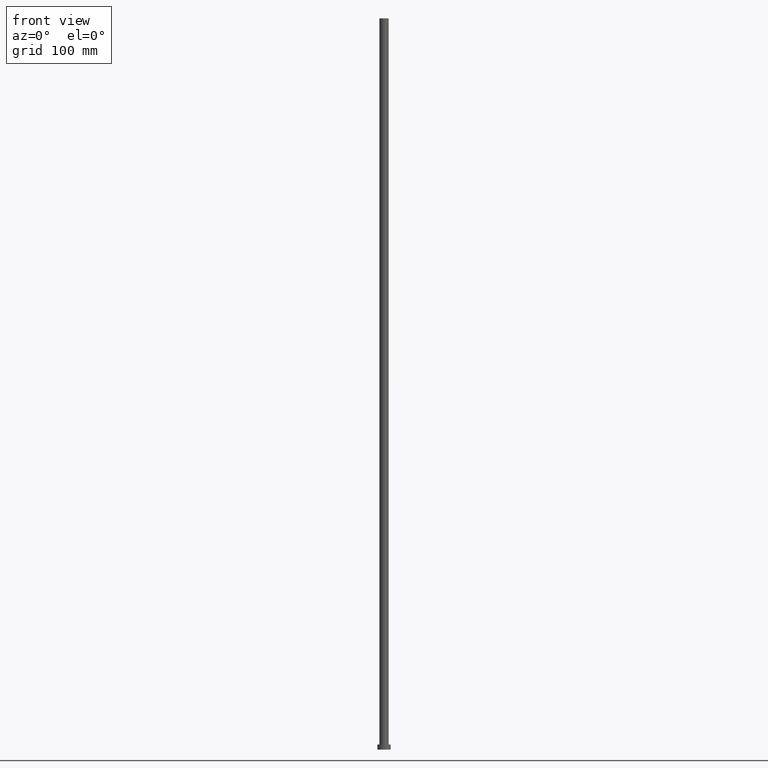
[diagram: clean part render]
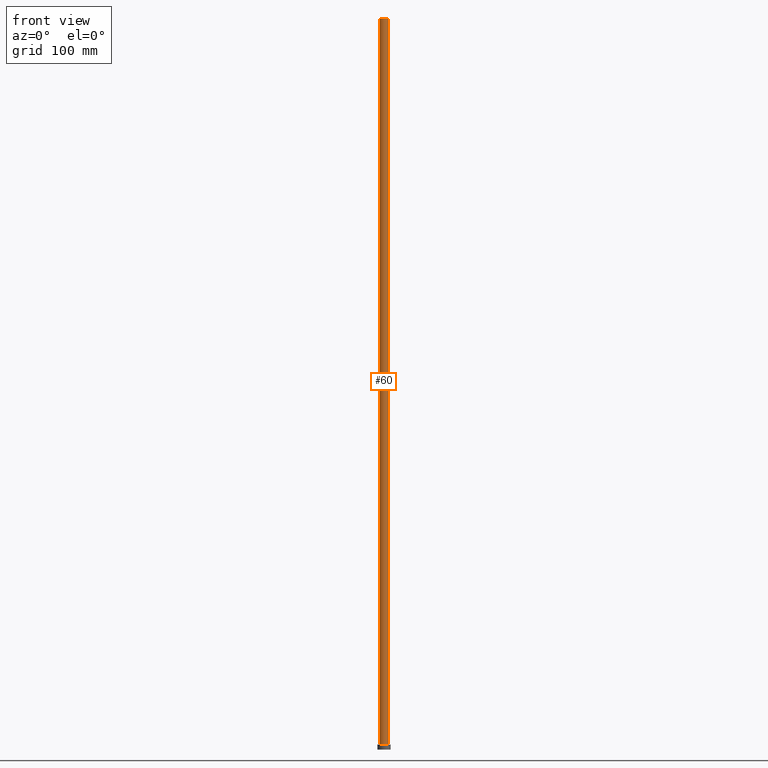
[diagram: same view with one face highlighted and labeled with its STEP entity id]
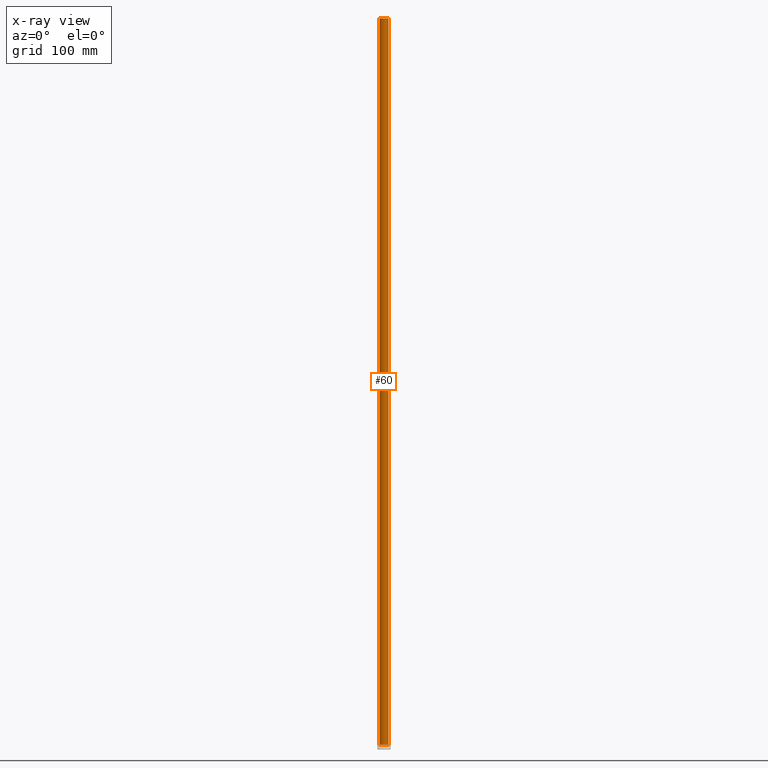
[diagram: x-ray of the same camera — body ghosted, the highlighted face saturated]
A machine part, front view. The second image highlights one B-rep face of the part: STEP entity #60.
The next image is the same camera in x-ray: the body ghosted, the highlighted face saturated — about 0% of this face is hidden behind the body in this view.
In plain terms, the highlighted cylindrical surface (edge-blend (fillet) strip) has radius 6.25 mm, axis along (-0, -0, -1).
Its self-contained STEP definition (entity closure, byte-faithful):
#5 = VECTOR ( 'NONE', #145, 1000.000000000000000 ) ;
#7 = CARTESIAN_POINT ( 'NONE',  ( 6.250000000000000000, 7.654042494670957606E-16, 7.000000000000000000 ) ) ;
#23 = EDGE_CURVE ( 'NONE', #239, #63, #103, .T. ) ;
#27 = CARTESIAN_POINT ( 'NONE',  ( 6.250000000000000000, 7.654042494670957606E-16, 1000.000000000000000 ) ) ;
#35 = ORIENTED_EDGE ( 'NONE', *, *, #99, .F. ) ;
#37 = EDGE_LOOP ( 'NONE', ( #240, #35, #184, #205 ) ) ;
#45 = AXIS2_PLACEMENT_3D ( 'NONE', #167, #77, #227 ) ;
#60 = ADVANCED_FACE ( 'NONE', ( #102 ), #100, .T. ) ;
#63 = VERTEX_POINT ( 'NONE', #7 ) ;
#67 = DIRECTION ( 'NONE',  ( -1.000000000000000000, 0.000000000000000000, 0.000000000000000000 ) ) ;
#69 = VERTEX_POINT ( 'NONE', #85 ) ;
#77 = DIRECTION ( 'NONE',  ( 0.000000000000000000, 0.000000000000000000, 1.000000000000000000 ) ) ;
#82 = DIRECTION ( 'NONE',  ( 1.000000000000000000, 0.000000000000000000, 0.000000000000000000 ) ) ;
#84 = DIRECTION ( 'NONE',  ( -0.000000000000000000, -0.000000000000000000, -1.000000000000000000 ) ) ;
#85 = CARTESIAN_POINT ( 'NONE',  ( -6.250000000000000000, 0.000000000000000000, 1000.000000000000000 ) ) ;
#99 = EDGE_CURVE ( 'NONE', #69, #239, #241, .T. ) ;
#100 = CYLINDRICAL_SURFACE ( 'NONE', #224, 6.250000000000000000 ) ;
#101 = CARTESIAN_POINT ( 'NONE',  ( 0.000000000000000000, 0.000000000000000000, 1000.000000000000000 ) ) ;
#102 = FACE_OUTER_BOUND ( 'NONE', #37, .T. ) ;
#103 = LINE ( 'NONE', #27, #200 ) ;
#106 = CARTESIAN_POINT ( 'NONE',  ( 6.250000000000000000, 7.654042494670957606E-16, 1000.000000000000000 ) ) ;
#123 = AXIS2_PLACEMENT_3D ( 'NONE', #182, #143, #82 ) ;
#125 = CARTESIAN_POINT ( 'NONE',  ( -6.250000000000000000, 0.000000000000000000, 7.000000000000000000 ) ) ;
#138 = VERTEX_POINT ( 'NONE', #125 ) ;
#143 = DIRECTION ( 'NONE',  ( 0.000000000000000000, 0.000000000000000000, 1.000000000000000000 ) ) ;
#145 = DIRECTION ( 'NONE',  ( -0.000000000000000000, -0.000000000000000000, -1.000000000000000000 ) ) ;
#151 = CIRCLE ( 'NONE', #45, 6.250000000000000000 ) ;
#159 = EDGE_CURVE ( 'NONE', #69, #138, #203, .T. ) ;
#163 = CARTESIAN_POINT ( 'NONE',  ( -6.250000000000000000, 0.000000000000000000, 1000.000000000000000 ) ) ;
#167 = CARTESIAN_POINT ( 'NONE',  ( 0.000000000000000000, 0.000000000000000000, 7.000000000000000000 ) ) ;
#182 = CARTESIAN_POINT ( 'NONE',  ( 0.000000000000000000, 0.000000000000000000, 1000.000000000000000 ) ) ;
#184 = ORIENTED_EDGE ( 'NONE', *, *, #159, .T. ) ;
#200 = VECTOR ( 'NONE', #84, 1000.000000000000000 ) ;
#203 = LINE ( 'NONE', #163, #5 ) ;
#205 = ORIENTED_EDGE ( 'NONE', *, *, #228, .T. ) ;
#224 = AXIS2_PLACEMENT_3D ( 'NONE', #101, #243, #67 ) ;
#227 = DIRECTION ( 'NONE',  ( 1.000000000000000000, 0.000000000000000000, 0.000000000000000000 ) ) ;
#228 = EDGE_CURVE ( 'NONE', #138, #63, #151, .T. ) ;
#239 = VERTEX_POINT ( 'NONE', #106 ) ;
#240 = ORIENTED_EDGE ( 'NONE', *, *, #23, .F. ) ;
#241 = CIRCLE ( 'NONE', #123, 6.250000000000000000 ) ;
#243 = DIRECTION ( 'NONE',  ( -0.000000000000000000, -0.000000000000000000, -1.000000000000000000 ) ) ;